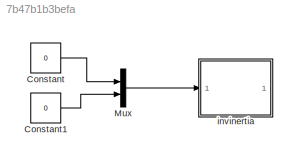
MODEL slx_7b47b1b3befa
KIND model
CONFIG AbsTol = auto
CONFIG EnableMultiTasking = off
CONFIG FixedStep = auto
CONFIG MaxStep = auto
CONFIG MinStep = auto
CONFIG RelTol = 1e-3
CONFIG SampleTimeConstraint = Unconstrained
CONFIG Solver = VariableStepAuto
CONFIG SolverName = VariableStepAuto
CONFIG StartTime = 0.0
CONFIG StopTime = 10.0
BLOCK [Constant] Constant
  Value = 0
BLOCK [Constant] Constant1
  Value = 0
BLOCK [Mux] Mux
  DisplayOption = bar
  Inputs = 2
  Ports = [2, 1]
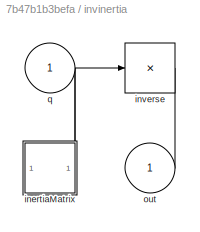
BLOCK [SubSystem] invinertia
  AncestorBlock = twolinkslib/invinertia
  Ports = [1, 1]
  RequestExecContextInheritance = off
  Variant = off
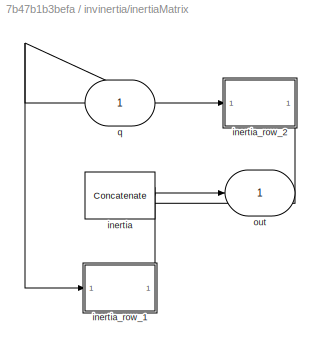
BLOCK [SubSystem] invinertia/inertiaMatrix
  AncestorBlock = twolinkslib/inertia
  Ports = [1, 1]
  RequestExecContextInheritance = off
  Variant = off
BLOCK [Concatenate] invinertia/inertiaMatrix/inertia
  Mode = Multidimensional array
  Ports = [2, 1]
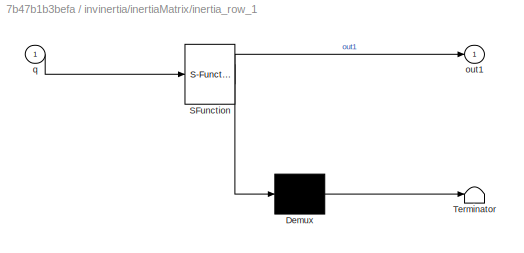
BLOCK [SubSystem] invinertia/inertiaMatrix/inertia_row_1
  ErrorFcn = Stateflow.Translate.translate
  PermitHierarchicalResolution = ExplicitOnly
  Ports = [1, 1]
  RequestExecContextInheritance = off
  SFBlockType = MATLAB Function
  TreatAsAtomicUnit = on
  Variant = off
BLOCK [Demux] invinertia/inertiaMatrix/inertia_row_1/ Demux 
  Outputs = 1
  Ports = [1, 1]
BLOCK [S-Function] invinertia/inertiaMatrix/inertia_row_1/ SFunction 
  EnableBusSupport = on
  FunctionName = sf_sfun
  PortCounts = [1 2]
  Ports = [1, 2]
  SFcnIsStateOwnerBlock = off
  SFunctionDeploymentMode = off
  Tag = Stateflow S-Function twolink_dynmodel_new 7
BLOCK [Terminator] invinertia/inertiaMatrix/inertia_row_1/ Terminator 
BLOCK [Outport] invinertia/inertiaMatrix/inertia_row_1/out1
  IconDisplay = Port number
BLOCK [Inport] invinertia/inertiaMatrix/inertia_row_1/q
  IconDisplay = Port number
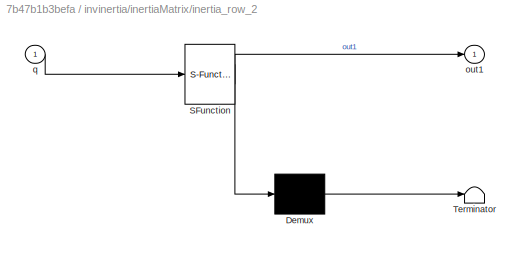
BLOCK [SubSystem] invinertia/inertiaMatrix/inertia_row_2
  ErrorFcn = Stateflow.Translate.translate
  PermitHierarchicalResolution = ExplicitOnly
  Ports = [1, 1]
  RequestExecContextInheritance = off
  SFBlockType = MATLAB Function
  TreatAsAtomicUnit = on
  Variant = off
BLOCK [Demux] invinertia/inertiaMatrix/inertia_row_2/ Demux 
  Outputs = 1
  Ports = [1, 1]
BLOCK [S-Function] invinertia/inertiaMatrix/inertia_row_2/ SFunction 
  EnableBusSupport = on
  FunctionName = sf_sfun
  PortCounts = [1 2]
  Ports = [1, 2]
  SFcnIsStateOwnerBlock = off
  SFunctionDeploymentMode = off
  Tag = Stateflow S-Function twolink_dynmodel_new 8
BLOCK [Terminator] invinertia/inertiaMatrix/inertia_row_2/ Terminator 
BLOCK [Outport] invinertia/inertiaMatrix/inertia_row_2/out1
  IconDisplay = Port number
BLOCK [Inport] invinertia/inertiaMatrix/inertia_row_2/q
  IconDisplay = Port number
BLOCK [Outport] invinertia/inertiaMatrix/out
  IconDisplay = Port number
BLOCK [Inport] invinertia/inertiaMatrix/q
  IconDisplay = Port number
BLOCK [Product] invinertia/inverse
  InputSameDT = off
  Inputs = /
  Multiplication = Matrix(*)
  OutDataTypeStr = Inherit: Inherit via internal rule
  Ports = [1, 1]
  RndMeth = Floor
  SaturateOnIntegerOverflow = off
BLOCK [Outport] invinertia/out
  IconDisplay = Port number
BLOCK [Inport] invinertia/q
  IconDisplay = Port number
LINE Constant1:1 -> Mux:2
LINE Constant:1 -> Mux:1
LINE Mux:1 -> invinertia:1
CHART invinertia/inertiaMatrix/inertia_row_1 states=1 transitions=1
  STATE_LABEL 'eML_blk_kernel()'
  STATE_LABEL 'SCRIPT:\nfunction out1 = inertia_row_1(q)\n%#codegen\n\n%    This function was generated by the Symbolic Math Toolbox version 7.2.\n%    12-Mar-2019 13:59:31\n\nq = q(:,2);\nt2 = cos(q(2));\nout1 = [t2+3.0./2.0,t2.*(1.0./2.0)+1.0./4.0];\n'
CHART invinertia/inertiaMatrix/inertia_row_2 states=1 transitions=1
  STATE_LABEL 'eML_blk_kernel()'
  STATE_LABEL 'SCRIPT:\nfunction out1 = inertia_row_2(q)\n%#codegen\n\n%    This function was generated by the Symbolic Math Toolbox version 7.2.\n%    12-Mar-2019 13:59:31\n\nq = q(:,2);\nout1 = [cos(q(2)).*(1.0./2.0)+1.0./4.0,1.0./4.0];\n'
